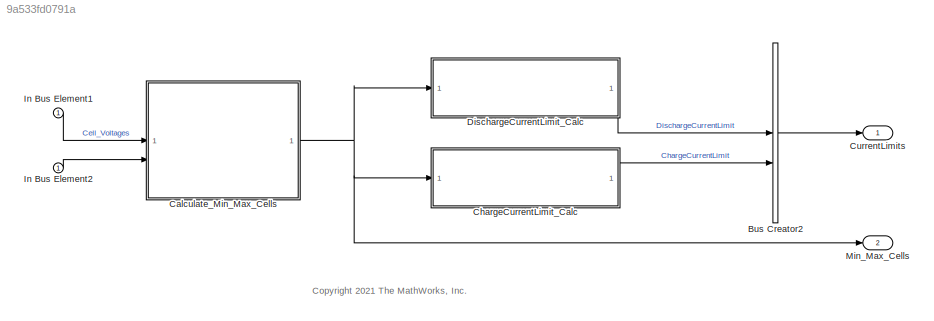
MODEL slx_9a533fd0791a
KIND model
CONFIG AbsTol = auto
CONFIG EnableMultiTasking = off
CONFIG FixedStep = auto
CONFIG MaxStep = auto
CONFIG MinStep = auto
CONFIG RelTol = 1e-3
CONFIG SampleTimeConstraint = Unconstrained
CONFIG SolverName = FixedStepDiscrete
CONFIG StartTime = 0.0
CONFIG StopTime = 10000
WORKSPACE source: mxarray member
WORKSPACE Active_Scenario_Index = 1
WORKSPACE BattTempInit = 25
WORKSPACE Battery: object (value not decoded)
WORKSPACE CellType = 1
WORKSPACE HighTempDchrgCurrentLim: Simulink.Signal (value not decoded)
WORKSPACE LowTempDchrgCurrentLim: Simulink.Signal (value not decoded)
WORKSPACE MaxChrgCurrLim: Simulink.Parameter (value not decoded)
WORKSPACE MaxDchrgCurrLim: Simulink.Parameter (value not decoded)
WORKSPACE MinCellVoltDchrgCurrentLim: Simulink.Signal (value not decoded)
WORKSPACE MinCellVoltDchrgCurrentLimTable: Simulink.LookupTable (value not decoded)
WORKSPACE Np_Module = 31
WORKSPACE Ns_Module = 24
WORKSPACE NumModules = 4
WORKSPACE OverCellVoltageLimit = 4.19999980927
WORKSPACE TestCase = 1
WORKSPACE UnderCellVoltageLimit = 2.5
WORKSPACE ts = 0.1
BLOCK [BusCreator] Bus Creator2
  DisplayOption = bar
  InheritFromInputs = on
  Inputs = 2
  NonVirtualBus = on
  OutDataTypeStr = Bus: CurrentLimits
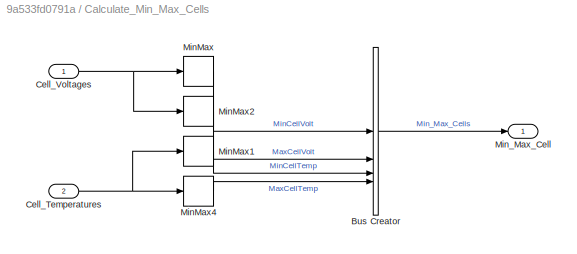
BLOCK [SubSystem] Calculate_Min_Max_Cells
BLOCK [BusCreator] Calculate_Min_Max_Cells/Bus Creator
  DisplayOption = bar
  InheritFromInputs = off
  Inputs = 4
  NonVirtualBus = on
  OutDataTypeStr = Bus: Min_Max_Cells
BLOCK [Inport] Calculate_Min_Max_Cells/Cell_Temperatures
  Port = 2
BLOCK [Inport] Calculate_Min_Max_Cells/Cell_Voltages
BLOCK [MinMax] Calculate_Min_Max_Cells/MinMax
BLOCK [MinMax] Calculate_Min_Max_Cells/MinMax1
BLOCK [MinMax] Calculate_Min_Max_Cells/MinMax2
  Function = max
BLOCK [MinMax] Calculate_Min_Max_Cells/MinMax4
  Function = max
BLOCK [Outport] Calculate_Min_Max_Cells/Min_Max_Cell
  OutDataTypeStr = Bus: Min_Max_Cells
  PortDimensions = 1
  SampleTime = [0.10000000000000001,0]
  SamplingMode = Sample based
  SignalType = real
  VectorParamsAs1DForOutWhenUnconnected = off
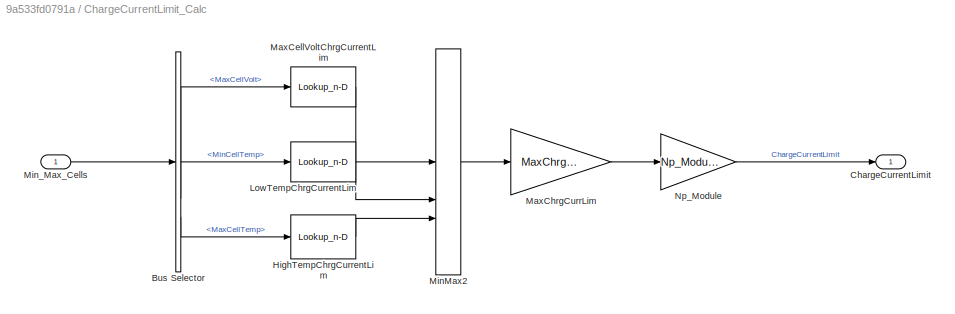
BLOCK [SubSystem] ChargeCurrentLimit_Calc
BLOCK [BusSelector] ChargeCurrentLimit_Calc/Bus Selector
  OutputSignals = MaxCellVolt,MinCellTemp,MaxCellTemp
BLOCK [Outport] ChargeCurrentLimit_Calc/ChargeCurrentLimit
  VectorParamsAs1DForOutWhenUnconnected = off
BLOCK [Lookup_n-D] ChargeCurrentLimit_Calc/HighTempChrgCurrentLim
  BreakpointsForDimension1 = single([40  45  50  55 60])
  ExtrapMethod = Clip
  InputPortMap = u0
  InternalRulePriority = Speed
  NumberOfTableDimensions = 1
  RndMeth = Simplest
  Table = single([1.0 0.8 0.5 0.3 0])
BLOCK [Lookup_n-D] ChargeCurrentLimit_Calc/LowTempChrgCurrentLim
  BreakpointsForDimension1 = single([-15 -10 -5.0 0.0 5.0 10 15.0])
  ExtrapMethod = Clip
  InputPortMap = u0
  InternalRulePriority = Speed
  NumberOfTableDimensions = 1
  RndMeth = Simplest
  Table = single([0.1 0.2  0.3 0.3 0.5 1.0 1.0])
BLOCK [Lookup_n-D] ChargeCurrentLimit_Calc/MaxCellVoltChrgCurrentLim
  BreakpointsForDimension1 = single([3.9 4.0 4.15 4.2])
  ExtrapMethod = Clip
  InputPortMap = u0
  InternalRulePriority = Speed
  NumberOfTableDimensions = 1
  RndMeth = Simplest
  Table = single([1.0 0.8 0.3  0.3])
BLOCK [Gain] ChargeCurrentLimit_Calc/MaxChrgCurrLim
  Gain = MaxChrgCurrLim
BLOCK [MinMax] ChargeCurrentLimit_Calc/MinMax2
  Inputs = 3
BLOCK [Inport] ChargeCurrentLimit_Calc/Min_Max_Cells
BLOCK [Gain] ChargeCurrentLimit_Calc/Np_Module
  Gain = Np_Module
BLOCK [Outport] CurrentLimits
  BusOutputAsStruct = on
  OutDataTypeStr = Bus: CurrentLimits
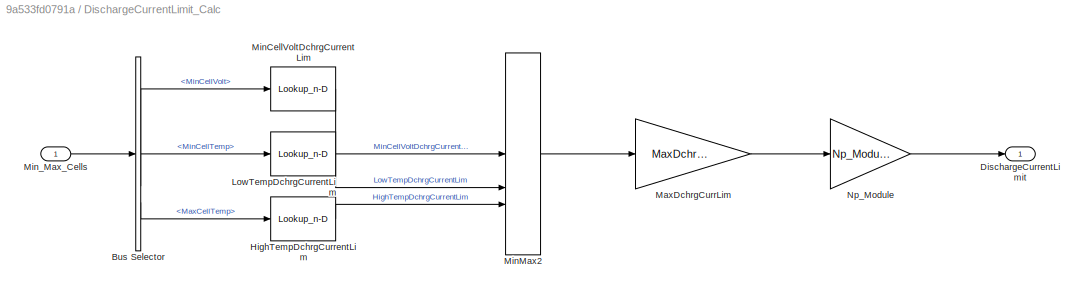
BLOCK [SubSystem] DischargeCurrentLimit_Calc
BLOCK [BusSelector] DischargeCurrentLimit_Calc/Bus Selector
  OutputSignals = MinCellVolt,MinCellTemp,MaxCellTemp
BLOCK [Outport] DischargeCurrentLimit_Calc/DischargeCurrentLimit
  VectorParamsAs1DForOutWhenUnconnected = off
BLOCK [Lookup_n-D] DischargeCurrentLimit_Calc/HighTempDchrgCurrentLim
  BreakpointsForDimension1 = single([40, 45, 50, 60])
  ExtrapMethod = Clip
  InputPortMap = u0
  InternalRulePriority = Speed
  NumberOfTableDimensions = 1
  RndMeth = Simplest
  Table = single([1, 0.5, 0.3, 0])
BLOCK [Lookup_n-D] DischargeCurrentLimit_Calc/LowTempDchrgCurrentLim
  BreakpointsForDimension1 = single([-10, -5,    0,   5, 10, 15, 20])
  ExtrapMethod = Clip
  InputPortMap = u0
  InternalRulePriority = Speed
  NumberOfTableDimensions = 1
  RndMeth = Simplest
  Table = single([0,  0.2, 0.3, 0.5, 0.75, 1, 1])
BLOCK [Gain] DischargeCurrentLimit_Calc/MaxDchrgCurrLim
  Gain = MaxDchrgCurrLim
BLOCK [Lookup_n-D] DischargeCurrentLimit_Calc/MinCellVoltDchrgCurrentLim
  BreakpointsForDimension1 = MinCellVoltDchrgCurrentLim_BP
  DataSpecification = Lookup table object
  ExtrapMethod = Clip
  InputPortMap = u0
  InternalRulePriority = Speed
  LookupTableObject = MinCellVoltDchrgCurrentLimTable
  NumberOfTableDimensions = 1
  RndMeth = Simplest
  Table = MinCellVoltDchrgCurrentLim_Table
BLOCK [MinMax] DischargeCurrentLimit_Calc/MinMax2
  Inputs = 3
BLOCK [Inport] DischargeCurrentLimit_Calc/Min_Max_Cells
BLOCK [Gain] DischargeCurrentLimit_Calc/Np_Module
  Gain = Np_Module
BLOCK [Inport] In Bus Element1
BLOCK [Inport] In Bus Element2
BLOCK [Outport] Min_Max_Cells
  BusOutputAsStruct = on
  OutDataTypeStr = Bus: Min_Max_Cells
  Port = 2
ANNOTATION (root): <copyright redacted>
LINE Bus Creator2:1 -> CurrentLimits:1
LINE Calculate_Min_Max_Cells/Bus Creator:1 -> Calculate_Min_Max_Cells/Min_Max_Cell:1
NET Calculate_Min_Max_Cells/Cell_Temperatures:1 -> Calculate_Min_Max_Cells/MinMax1:1, Calculate_Min_Max_Cells/MinMax4:1
NET Calculate_Min_Max_Cells/Cell_Voltages:1 -> Calculate_Min_Max_Cells/MinMax2:1, Calculate_Min_Max_Cells/MinMax:1
LINE Calculate_Min_Max_Cells/MinMax1:1 -> Calculate_Min_Max_Cells/Bus Creator:3
LINE Calculate_Min_Max_Cells/MinMax2:1 -> Calculate_Min_Max_Cells/Bus Creator:2
LINE Calculate_Min_Max_Cells/MinMax4:1 -> Calculate_Min_Max_Cells/Bus Creator:4
LINE Calculate_Min_Max_Cells/MinMax:1 -> Calculate_Min_Max_Cells/Bus Creator:1
NET Calculate_Min_Max_Cells:1 -> ChargeCurrentLimit_Calc:1, DischargeCurrentLimit_Calc:1, Min_Max_Cells:1
LINE ChargeCurrentLimit_Calc/Bus Selector:1 -> ChargeCurrentLimit_Calc/MaxCellVoltChrgCurrentLim:1
LINE ChargeCurrentLimit_Calc/Bus Selector:2 -> ChargeCurrentLimit_Calc/LowTempChrgCurrentLim:1
LINE ChargeCurrentLimit_Calc/Bus Selector:3 -> ChargeCurrentLimit_Calc/HighTempChrgCurrentLim:1
LINE ChargeCurrentLimit_Calc/HighTempChrgCurrentLim:1 -> ChargeCurrentLimit_Calc/MinMax2:3
LINE ChargeCurrentLimit_Calc/LowTempChrgCurrentLim:1 -> ChargeCurrentLimit_Calc/MinMax2:2
LINE ChargeCurrentLimit_Calc/MaxCellVoltChrgCurrentLim:1 -> ChargeCurrentLimit_Calc/MinMax2:1
LINE ChargeCurrentLimit_Calc/MaxChrgCurrLim:1 -> ChargeCurrentLimit_Calc/Np_Module:1
LINE ChargeCurrentLimit_Calc/MinMax2:1 -> ChargeCurrentLimit_Calc/MaxChrgCurrLim:1
LINE ChargeCurrentLimit_Calc/Min_Max_Cells:1 -> ChargeCurrentLimit_Calc/Bus Selector:1
LINE ChargeCurrentLimit_Calc/Np_Module:1 -> ChargeCurrentLimit_Calc/ChargeCurrentLimit:1
LINE ChargeCurrentLimit_Calc:1 -> Bus Creator2:2
LINE DischargeCurrentLimit_Calc/Bus Selector:1 -> DischargeCurrentLimit_Calc/MinCellVoltDchrgCurrentLim:1
LINE DischargeCurrentLimit_Calc/Bus Selector:2 -> DischargeCurrentLimit_Calc/LowTempDchrgCurrentLim:1
LINE DischargeCurrentLimit_Calc/Bus Selector:3 -> DischargeCurrentLimit_Calc/HighTempDchrgCurrentLim:1
LINE DischargeCurrentLimit_Calc/HighTempDchrgCurrentLim:1 -> DischargeCurrentLimit_Calc/MinMax2:3
LINE DischargeCurrentLimit_Calc/LowTempDchrgCurrentLim:1 -> DischargeCurrentLimit_Calc/MinMax2:2
LINE DischargeCurrentLimit_Calc/MaxDchrgCurrLim:1 -> DischargeCurrentLimit_Calc/Np_Module:1
LINE DischargeCurrentLimit_Calc/MinCellVoltDchrgCurrentLim:1 -> DischargeCurrentLimit_Calc/MinMax2:1
LINE DischargeCurrentLimit_Calc/MinMax2:1 -> DischargeCurrentLimit_Calc/MaxDchrgCurrLim:1
LINE DischargeCurrentLimit_Calc/Min_Max_Cells:1 -> DischargeCurrentLimit_Calc/Bus Selector:1
LINE DischargeCurrentLimit_Calc/Np_Module:1 -> DischargeCurrentLimit_Calc/DischargeCurrentLimit:1
LINE DischargeCurrentLimit_Calc:1 -> Bus Creator2:1
LINE In Bus Element1:1 -> Calculate_Min_Max_Cells:1
LINE In Bus Element2:1 -> Calculate_Min_Max_Cells:2
note: NET lines group one-source signal fan-out (src -> all destinations, sorted); 1:1 wires keep LINE
